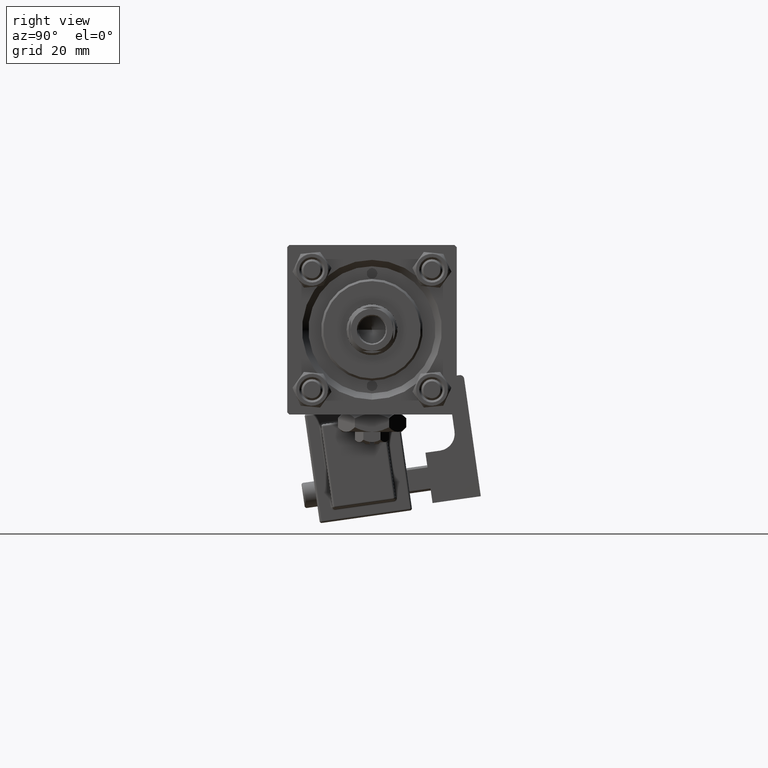
[diagram: clean part render]
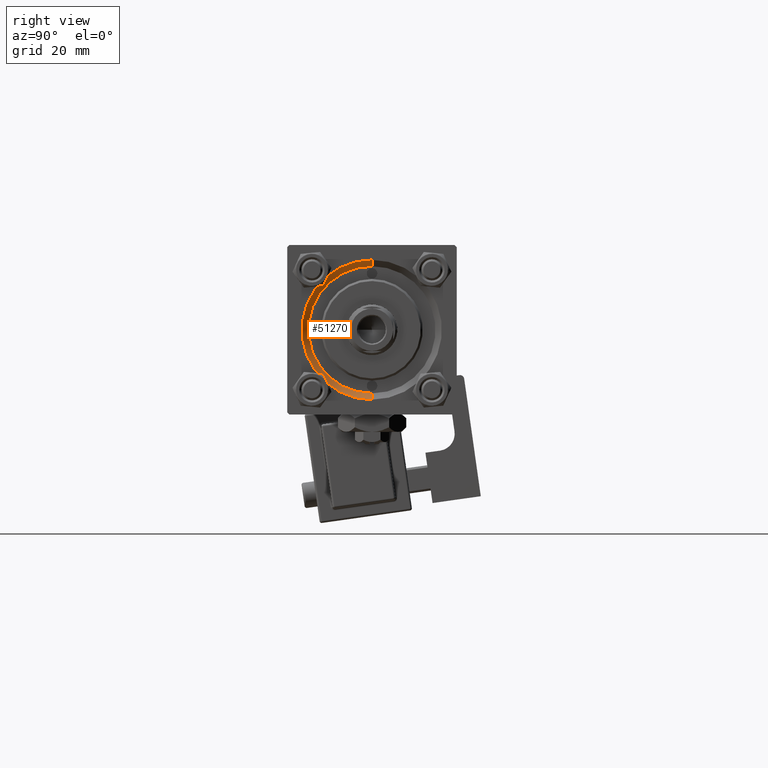
[diagram: same view with one face highlighted and labeled with its STEP entity id]
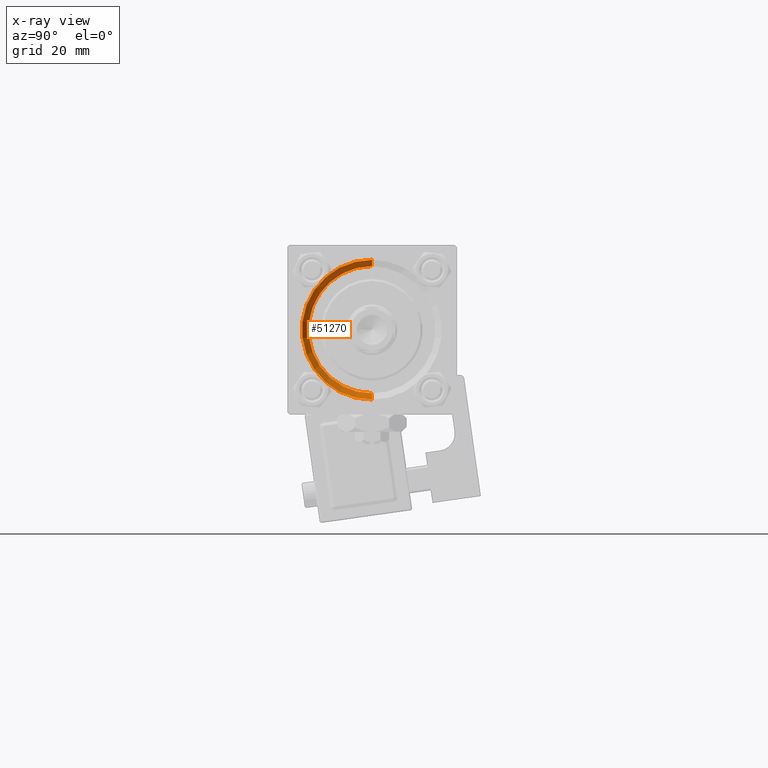
[diagram: x-ray of the same camera — body ghosted, the highlighted face saturated]
A machine part, right view. The second image highlights one B-rep face of the part: STEP entity #51270.
The next image is the same camera in x-ray: the body ghosted, the highlighted face saturated — about 0% of this face is hidden behind the body in this view.
In plain terms, the highlighted conical surface has half-angle 45 deg.
Its self-contained STEP definition (entity closure, byte-faithful):
#900 = AXIS2_PLACEMENT_3D ( 'NONE', #51857, #26812, #27083 ) ;
#1207 = FACE_OUTER_BOUND ( 'NONE', #44284, .T. ) ;
#2368 = CARTESIAN_POINT ( 'NONE',  ( 117.5000000000000000, 0.000000000000000000, -15.00000000000000000 ) ) ;
#5986 = VERTEX_POINT ( 'NONE', #33476 ) ;
#6260 = LINE ( 'NONE', #14691, #17451 ) ;
#7322 = CARTESIAN_POINT ( 'NONE',  ( 119.0000000000000142, 2.020667218593134678E-15, 16.50000000000001421 ) ) ;
#7571 = VERTEX_POINT ( 'NONE', #27671 ) ;
#9373 = ORIENTED_EDGE ( 'NONE', *, *, #15505, .F. ) ;
#9682 = VERTEX_POINT ( 'NONE', #7322 ) ;
#10344 = DIRECTION ( 'NONE',  ( 0.7071067811865474617, 0.000000000000000000, -0.7071067811865474617 ) ) ;
#10849 = ORIENTED_EDGE ( 'NONE', *, *, #52485, .T. ) ;
#10920 = CIRCLE ( 'NONE', #47423, 16.50000000000001421 ) ;
#12394 = DIRECTION ( 'NONE',  ( 0.000000000000000000, 0.000000000000000000, 1.000000000000000000 ) ) ;
#14691 = CARTESIAN_POINT ( 'NONE',  ( 117.5000000000000000, 0.000000000000000000, -15.00000000000000000 ) ) ;
#15505 = EDGE_CURVE ( 'NONE', #45952, #7571, #6260, .T. ) ;
#17451 = VECTOR ( 'NONE', #10344, 1000.000000000000114 ) ;
#20922 = VECTOR ( 'NONE', #31754, 1000.000000000000114 ) ;
#22650 = CONICAL_SURFACE ( 'NONE', #900, 15.00000000000000000, 0.7853981633974482790 ) ;
#24355 = LINE ( 'NONE', #48071, #20922 ) ;
#24905 = DIRECTION ( 'NONE',  ( -1.000000000000000000, -0.000000000000000000, -0.000000000000000000 ) ) ;
#25064 = CARTESIAN_POINT ( 'NONE',  ( 117.5000000000000000, 0.000000000000000000, 0.000000000000000000 ) ) ;
#26665 = AXIS2_PLACEMENT_3D ( 'NONE', #25064, #49311, #40899 ) ;
#26788 = EDGE_CURVE ( 'NONE', #7571, #9682, #10920, .T. ) ;
#26812 = DIRECTION ( 'NONE',  ( 1.000000000000000000, 0.000000000000000000, 0.000000000000000000 ) ) ;
#27083 = DIRECTION ( 'NONE',  ( 0.000000000000000000, 0.000000000000000000, -1.000000000000000000 ) ) ;
#27671 = CARTESIAN_POINT ( 'NONE',  ( 119.0000000000000142, 0.000000000000000000, -16.50000000000001421 ) ) ;
#31754 = DIRECTION ( 'NONE',  ( 0.7071067811865474617, 8.659560562354932858E-17, 0.7071067811865474617 ) ) ;
#33476 = CARTESIAN_POINT ( 'NONE',  ( 117.5000000000000000, 1.836970198721029589E-15, 15.00000000000000000 ) ) ;
#39201 = EDGE_CURVE ( 'NONE', #5986, #45952, #53577, .T. ) ;
#40899 = DIRECTION ( 'NONE',  ( 0.000000000000000000, 0.000000000000000000, 1.000000000000000000 ) ) ;
#44284 = EDGE_LOOP ( 'NONE', ( #49759, #10849, #44686, #9373 ) ) ;
#44686 = ORIENTED_EDGE ( 'NONE', *, *, #26788, .F. ) ;
#45347 = CARTESIAN_POINT ( 'NONE',  ( 119.0000000000000142, 0.000000000000000000, 0.000000000000000000 ) ) ;
#45952 = VERTEX_POINT ( 'NONE', #2368 ) ;
#47423 = AXIS2_PLACEMENT_3D ( 'NONE', #45347, #24905, #12394 ) ;
#48071 = CARTESIAN_POINT ( 'NONE',  ( 117.5000000000000000, 1.836970198721029589E-15, 15.00000000000000000 ) ) ;
#49311 = DIRECTION ( 'NONE',  ( 1.000000000000000000, 0.000000000000000000, 0.000000000000000000 ) ) ;
#49759 = ORIENTED_EDGE ( 'NONE', *, *, #39201, .F. ) ;
#51270 = ADVANCED_FACE ( 'NONE', ( #1207 ), #22650, .F. ) ;
#51857 = CARTESIAN_POINT ( 'NONE',  ( 117.5000000000000000, 0.000000000000000000, 0.000000000000000000 ) ) ;
#52485 = EDGE_CURVE ( 'NONE', #5986, #9682, #24355, .T. ) ;
#53577 = CIRCLE ( 'NONE', #26665, 15.00000000000000000 ) ;